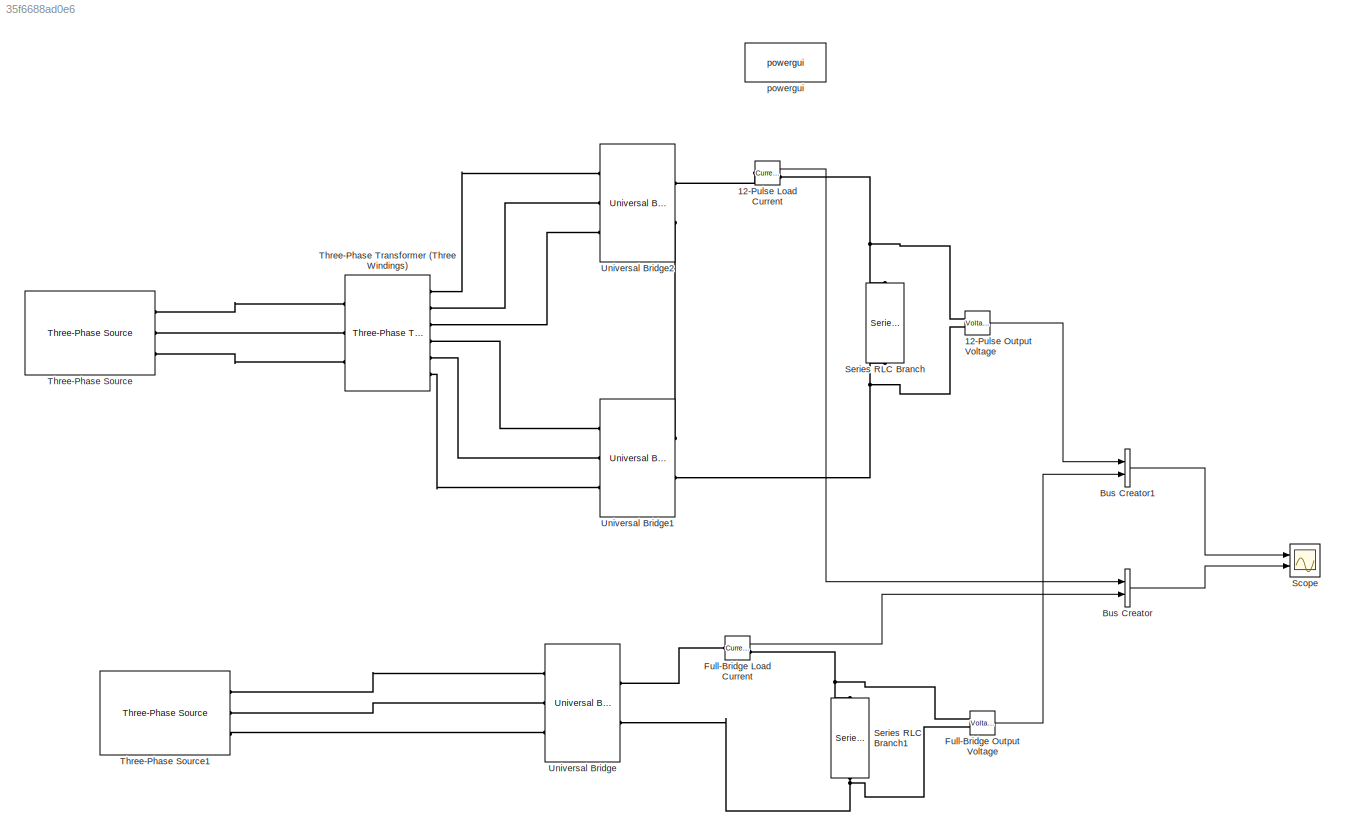
MODEL slx_35f6688ad0e6
KIND model
CONFIG AbsTol = auto
CONFIG EnableMultiTasking = off
CONFIG FixedStep = auto
CONFIG MaxStep = auto
CONFIG MinStep = auto
CONFIG RelTol = 1e-3
CONFIG SampleTimeConstraint = Unconstrained
CONFIG Solver = VariableStepDiscrete
CONFIG SolverName = VariableStepDiscrete
CONFIG StartTime = 0
CONFIG StopTime = 0.05
BLOCK [Reference] 12-Pulse Load Current  REF=powerlib/Measurements/Current Measurement
  Ports = [0, 1, 0, 0, 0, 1, 1]
  SourceBlock = powerlib/Measurements/Current Measurement
  SourceProductBaseCode = PS
  SourceProductName = Simscape Power Systems
  SourceType = Current Measurement
  UserDataPersistent = on
BLOCK [Reference] 12-Pulse Output Voltage  REF=powerlib/Measurements/Voltage Measurement
  Ports = [0, 1, 0, 0, 0, 2]
  SourceBlock = powerlib/Measurements/Voltage Measurement
  SourceProductBaseCode = PS
  SourceProductName = Simscape Power Systems
  SourceType = Voltage Measurement
  UserDataPersistent = on
BLOCK [BusCreator] Bus Creator
  DisplayOption = bar
  InheritFromInputs = on
  Inputs = 2
  Ports = [2, 1]
BLOCK [BusCreator] Bus Creator1
  DisplayOption = bar
  InheritFromInputs = on
  Inputs = 2
  Ports = [2, 1]
BLOCK [Reference] Full-Bridge Load Current  REF=powerlib/Measurements/Current Measurement
  Ports = [0, 1, 0, 0, 0, 1, 1]
  SourceBlock = powerlib/Measurements/Current Measurement
  SourceProductBaseCode = PS
  SourceProductName = Simscape Power Systems
  SourceType = Current Measurement
  UserDataPersistent = on
BLOCK [Reference] Full-Bridge Output Voltage  REF=powerlib/Measurements/Voltage Measurement
  Ports = [0, 1, 0, 0, 0, 2]
  SourceBlock = powerlib/Measurements/Voltage Measurement
  SourceProductBaseCode = PS
  SourceProductName = Simscape Power Systems
  SourceType = Voltage Measurement
  UserDataPersistent = on
BLOCK [Scope] Scope
  Floating = off
  NumInputPorts = 2
  Ports = [2]
  ScopeSpecificationString = Simulink.scopes.TimeScopeBlockCfg('CurrentConfiguration', extmgr.ConfigurationSet(extmgr.Configuration('Core','General UI',true,'FigureColor',[1 1 1]),extmgr.Configuration('Core','Source UI',true),extmgr.Configuration('Sources','WiredSimulink',true,'DataLogging',true,'DataLoggingVariableName','ScopeData1'),extmgr.Configuration('Visuals','Time Domain',true,'SerializedDisplays',{struct('MinYLimReal'...<+2678ch>
BLOCK [Reference] Series RLC Branch  REF=powerlib/Elements/Series RLC Branch
  Ports = [0, 0, 0, 0, 0, 1, 1]
  SourceBlock = powerlib/Elements/Series RLC Branch
  SourceProductBaseCode = PS
  SourceProductName = Simscape Power Systems
  SourceType = Series RLC Branch
BLOCK [Reference] Series RLC Branch1  REF=powerlib/Elements/Series RLC Branch
  Ports = [0, 0, 0, 0, 0, 1, 1]
  SourceBlock = powerlib/Elements/Series RLC Branch
  SourceProductBaseCode = PS
  SourceProductName = Simscape Power Systems
  SourceType = Series RLC Branch
BLOCK [Reference] Three-Phase Source  REF=powerlib/Electrical
Sources/Three-Phase Source
  Ports = [0, 0, 0, 0, 0, 0, 3]
  SourceBlock = powerlib/Electrical\nSources/Three-Phase Source
  SourceProductBaseCode = PS
  SourceProductName = Simscape Power Systems
  SourceType = Three-Phase Source
BLOCK [Reference] Three-Phase Source1  REF=powerlib/Electrical
Sources/Three-Phase Source
  Ports = [0, 0, 0, 0, 0, 0, 3]
  SourceBlock = powerlib/Electrical\nSources/Three-Phase Source
  SourceProductBaseCode = PS
  SourceProductName = Simscape Power Systems
  SourceType = Three-Phase Source
BLOCK [Reference] Three-Phase Transformer (Three Windings)  REF=powerlib/Elements/Three-Phase
Transformer
(Three Windings)
  Ports = [0, 0, 0, 0, 0, 3, 6]
  SourceBlock = powerlib/Elements/Three-Phase\nTransformer\n(Three Windings)
  SourceProductBaseCode = PS
  SourceProductName = Simscape Power Systems
  SourceType = Three-Phase Transformer (Three Windings)
BLOCK [Reference] Universal Bridge  REF=powerlib/Power
Electronics/Universal Bridge
  Ports = [0, 0, 0, 0, 0, 3, 2]
  SourceBlock = powerlib/Power\nElectronics/Universal Bridge
  SourceProductBaseCode = PS
  SourceProductName = Simscape Power Systems
  SourceType = Universal Bridge
BLOCK [Reference] Universal Bridge1  REF=powerlib/Power
Electronics/Universal Bridge
  Ports = [0, 0, 0, 0, 0, 3, 2]
  SourceBlock = powerlib/Power\nElectronics/Universal Bridge
  SourceProductBaseCode = PS
  SourceProductName = Simscape Power Systems
  SourceType = Universal Bridge
BLOCK [Reference] Universal Bridge2  REF=powerlib/Power
Electronics/Universal Bridge
  Ports = [0, 0, 0, 0, 0, 3, 2]
  SourceBlock = powerlib/Power\nElectronics/Universal Bridge
  SourceProductBaseCode = PS
  SourceProductName = Simscape Power Systems
  SourceType = Universal Bridge
BLOCK [Reference] powergui  REF=powerlib/powergui
  Ports = []
  Priority = 1
  SourceBlock = powerlib/powergui
  SourceProductBaseCode = PS
  SourceProductName = Simscape Power Systems
  SourceType = PSB option menu block
LINE 12-Pulse Load Current:1 -> Bus Creator:1
LINE 12-Pulse Output Voltage:1 -> Bus Creator1:1
LINE Bus Creator1:1 -> Scope:1
LINE Bus Creator:1 -> Scope:2
LINE Full-Bridge Load Current:1 -> Bus Creator:2
LINE Full-Bridge Output Voltage:1 -> Bus Creator1:2
PLINE 12-Pulse Load Current:LConn1 -- Universal Bridge2:RConn1
PNET net1: 12-Pulse Load Current:RConn1 -- 12-Pulse Output Voltage:LConn1 -- Series RLC Branch:RConn1
PNET net2: 12-Pulse Output Voltage:LConn2 -- Series RLC Branch:LConn1 -- Universal Bridge1:RConn2
PLINE Full-Bridge Load Current:LConn1 -- Universal Bridge:RConn1
PNET net3: Full-Bridge Load Current:RConn1 -- Full-Bridge Output Voltage:LConn1 -- Series RLC Branch1:RConn1
PNET net4: Full-Bridge Output Voltage:LConn2 -- Series RLC Branch1:LConn1 -- Universal Bridge:RConn2
PLINE Three-Phase Source1:RConn1 -- Universal Bridge:LConn1
PLINE Three-Phase Source1:RConn2 -- Universal Bridge:LConn2
PLINE Three-Phase Source1:RConn3 -- Universal Bridge:LConn3
PLINE Three-Phase Source:RConn1 -- Three-Phase Transformer (Three Windings):LConn1
PLINE Three-Phase Source:RConn2 -- Three-Phase Transformer (Three Windings):LConn2
PLINE Three-Phase Source:RConn3 -- Three-Phase Transformer (Three Windings):LConn3
PLINE Three-Phase Transformer (Three Windings):RConn1 -- Universal Bridge2:LConn1
PLINE Three-Phase Transformer (Three Windings):RConn2 -- Universal Bridge2:LConn2
PLINE Three-Phase Transformer (Three Windings):RConn3 -- Universal Bridge2:LConn3
PLINE Three-Phase Transformer (Three Windings):RConn4 -- Universal Bridge1:LConn1
PLINE Three-Phase Transformer (Three Windings):RConn5 -- Universal Bridge1:LConn2
PLINE Three-Phase Transformer (Three Windings):RConn6 -- Universal Bridge1:LConn3
PLINE Universal Bridge1:RConn1 -- Universal Bridge2:RConn2
note: PNET lines group multi-terminal physical nets as a canonical sorted terminal list (undirected conserving connections); 2-terminal nets keep the pairwise PLINE form
